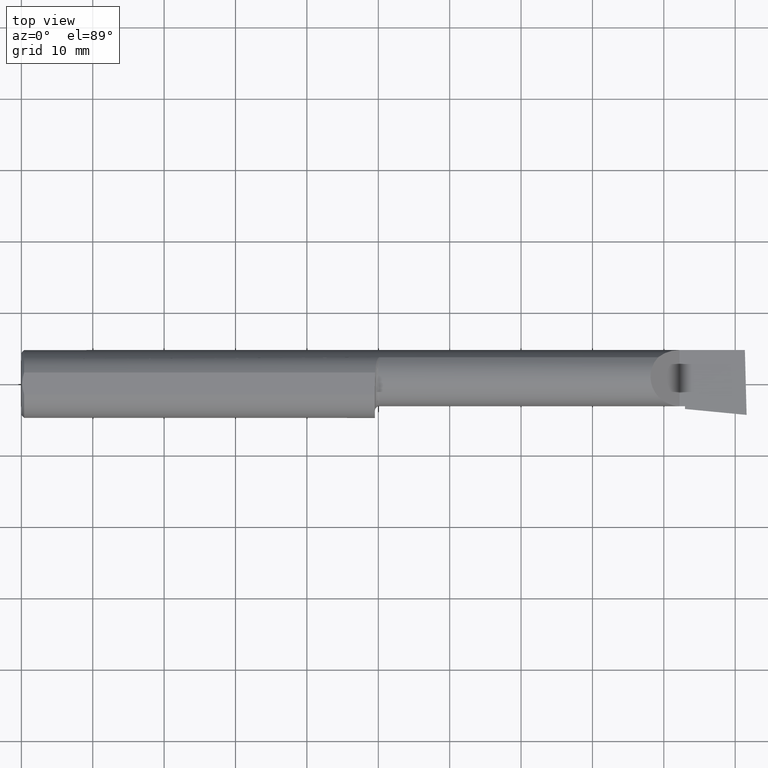
[diagram: clean part render]
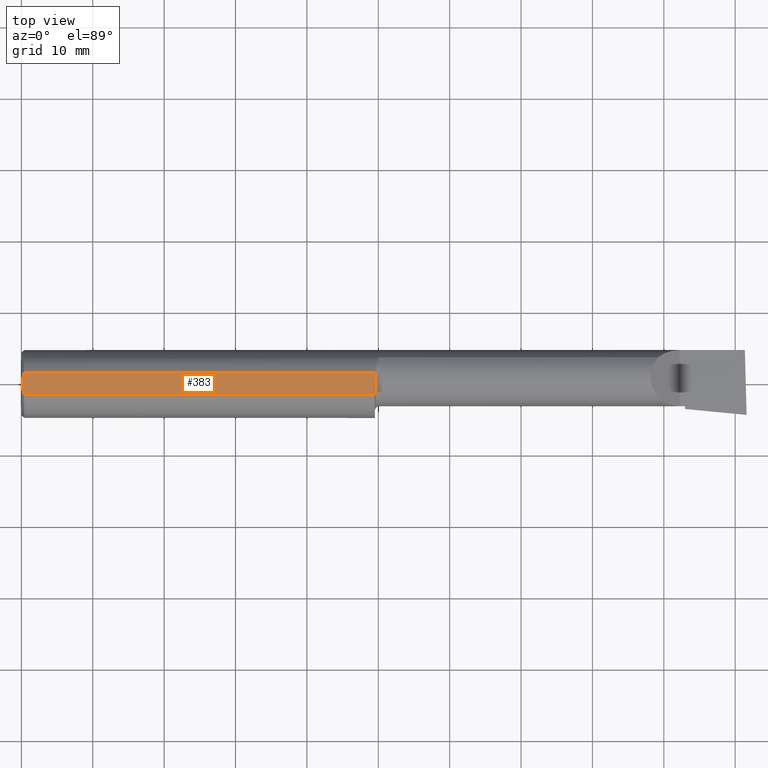
[diagram: same view with one face highlighted and labeled with its STEP entity id]
A machine part, top view. The second image highlights one B-rep face of the part: STEP entity #383.
In plain terms, the highlighted planar face has unit normal (0, -0, -1).
Its self-contained STEP definition (entity closure, byte-faithful):
#21 = AXIS2_PLACEMENT_3D ( 'NONE', #563, #403, #64 ) ;
#24 = ORIENTED_EDGE ( 'NONE', *, *, #596, .T. ) ;
#31 = CARTESIAN_POINT ( 'NONE',  ( 0.005000000000000064289, 2.941982644279459108E-17, 0.1773499999999999799 ) ) ;
#42 = CARTESIAN_POINT ( 'NONE',  ( 0.005000000000000064289, 2.941982644279459108E-17, 0.1773499999999999799 ) ) ;
#56 = CARTESIAN_POINT ( 'NONE',  ( 1.950785114220952909, 0.06039039658755706447, 0.1773499999999999799 ) ) ;
#60 = EDGE_CURVE ( 'NONE', #361, #523, #266, .T. ) ;
#64 = DIRECTION ( 'NONE',  ( 0.000000000000000000, 1.000000000000000000, -1.438723400918613551E-16 ) ) ;
#67 = VECTOR ( 'NONE', #264, 39.37007874015748143 ) ;
#84 = CARTESIAN_POINT ( 'NONE',  ( 0.01499999999999999424, 0.06039039658753699719, 0.1773499999999999799 ) ) ;
#85 = CARTESIAN_POINT ( 'NONE',  ( 0.01499999999999999424, 0.06039039658753699719, 0.1773499999999999799 ) ) ;
#127 = CARTESIAN_POINT ( 'NONE',  ( 1.950000000000000178, -0.01542499408424075763, 0.1773499999999999799 ) ) ;
#131 = CARTESIAN_POINT ( 'NONE',  ( 0.005916828623699200637, 0.02060071390057457985, 0.1773500000000000354 ) ) ;
#136 = DIRECTION ( 'NONE',  ( 4.268512490100411279E-18, 1.000000000000000000, -1.438723400918613551E-16 ) ) ;
#139 = ORIENTED_EDGE ( 'NONE', *, *, #528, .T. ) ;
#140 = LINE ( 'NONE', #689, #693 ) ;
#141 = B_SPLINE_CURVE_WITH_KNOTS ( 'NONE', 3,
 ( #31, #524, #131, #185, #362, #84 ),
 .UNSPECIFIED., .F., .F.,
 ( 4, 2, 4 ),
 ( 0.003471415557842634329, 0.004247578446323233697, 0.005023741334803832198 ),
 .UNSPECIFIED. ) ;
#151 = VECTOR ( 'NONE', #389, 39.37007874015748143 ) ;
#162 = LINE ( 'NONE', #607, #151 ) ;
#185 = CARTESIAN_POINT ( 'NONE',  ( 0.009346310357819969869, 0.04072930668827118295, 0.1773499999999999799 ) ) ;
#202 = CARTESIAN_POINT ( 'NONE',  ( 1.951203659466147933, 0.04770763948016056022, 0.1773499999999999799 ) ) ;
#209 = ORIENTED_EDGE ( 'NONE', *, *, #584, .F. ) ;
#231 = B_SPLINE_CURVE_WITH_KNOTS ( 'NONE', 3,
 ( #485, #585, #697, #481, #536, #573, #202, #430 ),
 .UNSPECIFIED., .F., .F.,
 ( 4, 2, 2, 4 ),
 ( 0.01216978501342508290, 0.01265286668816368275, 0.01313594836290228260, 0.01410211171237948230 ),
 .UNSPECIFIED. ) ;
#233 = VERTEX_POINT ( 'NONE', #674 ) ;
#238 = EDGE_CURVE ( 'NONE', #233, #398, #162, .T. ) ;
#258 = ORIENTED_EDGE ( 'NONE', *, *, #627, .F. ) ;
#264 = DIRECTION ( 'NONE',  ( 1.000000000000000000, 0.000000000000000000, 0.000000000000000000 ) ) ;
#266 = LINE ( 'NONE', #431, #67 ) ;
#328 = CARTESIAN_POINT ( 'NONE',  ( 0.005896899252109526549, -0.02043863390046160924, 0.1773500000000000354 ) ) ;
#360 = PLANE ( 'NONE',  #21 ) ;
#361 = VERTEX_POINT ( 'NONE', #85 ) ;
#362 = CARTESIAN_POINT ( 'NONE',  ( 0.01185291896084126120, 0.05062716160312127206, 0.1773499999999999799 ) ) ;
#374 = CARTESIAN_POINT ( 'NONE',  ( 0.005000000000000064289, 2.941982644279459108E-17, 0.1773499999999999799 ) ) ;
#383 = ADVANCED_FACE ( 'NONE', ( #628 ), #360, .F. ) ;
#389 = DIRECTION ( 'NONE',  ( -1.000000000000000000, -0.000000000000000000, -0.000000000000000000 ) ) ;
#398 = VERTEX_POINT ( 'NONE', #451 ) ;
#403 = DIRECTION ( 'NONE',  ( 0.000000000000000000, -1.438723400918613551E-16, -1.000000000000000000 ) ) ;
#427 = CARTESIAN_POINT ( 'NONE',  ( 0.01499999999999997863, -0.06039039658753695555, 0.1773499999999999799 ) ) ;
#430 = CARTESIAN_POINT ( 'NONE',  ( 1.950785114220952909, 0.06039039658755706447, 0.1773499999999999799 ) ) ;
#431 = CARTESIAN_POINT ( 'NONE',  ( 0.000000000000000000, 0.06039039658753699719, 0.1773499999999999799 ) ) ;
#440 = CARTESIAN_POINT ( 'NONE',  ( 0.009318557230853338064, -0.04061090184993773611, 0.1773500000000000354 ) ) ;
#451 = CARTESIAN_POINT ( 'NONE',  ( 0.01499999999999997863, -0.06039039658753695555, 0.1773499999999999799 ) ) ;
#454 = ORIENTED_EDGE ( 'NONE', *, *, #238, .F. ) ;
#481 = CARTESIAN_POINT ( 'NONE',  ( 1.950617320471541793, 0.009671822434489447951, 0.1773499999999999799 ) ) ;
#485 = CARTESIAN_POINT ( 'NONE',  ( 1.950000000000000178, -0.01542499408424075763, 0.1773499999999999799 ) ) ;
#509 = VERTEX_POINT ( 'NONE', #127 ) ;
#523 = VERTEX_POINT ( 'NONE', #56 ) ;
#524 = CARTESIAN_POINT ( 'NONE',  ( 0.005000000000000065156, 0.01027925662263780987, 0.1773499999999999521 ) ) ;
#527 = VERTEX_POINT ( 'NONE', #42 ) ;
#528 = EDGE_CURVE ( 'NONE', #233, #509, #140, .T. ) ;
#536 = CARTESIAN_POINT ( 'NONE',  ( 1.950860396780995654, 0.01600857064700857840, 0.1773499999999999799 ) ) ;
#563 = CARTESIAN_POINT ( 'NONE',  ( 4.000000000000000000, 0.2373500000000000332, 0.1773499999999999521 ) ) ;
#573 = CARTESIAN_POINT ( 'NONE',  ( 1.951333966108146356, 0.03502260429571603384, 0.1773499999999999799 ) ) ;
#584 = EDGE_CURVE ( 'NONE', #527, #361, #141, .T. ) ;
#585 = CARTESIAN_POINT ( 'NONE',  ( 1.949999999999999734, -0.009183956085900462155, 0.1773499999999999521 ) ) ;
#593 = CARTESIAN_POINT ( 'NONE',  ( 0.005000000000000066891, -0.01026662907944657019, 0.1773499999999999521 ) ) ;
#596 = EDGE_CURVE ( 'NONE', #509, #523, #231, .T. ) ;
#607 = CARTESIAN_POINT ( 'NONE',  ( 0.000000000000000000, -0.06039039658753694861, 0.1773499999999999799 ) ) ;
#627 = EDGE_CURVE ( 'NONE', #398, #527, #651, .T. ) ;
#628 = FACE_OUTER_BOUND ( 'NONE', #692, .T. ) ;
#642 = CARTESIAN_POINT ( 'NONE',  ( 0.01186375298701901684, -0.05066077215909264159, 0.1773500000000000354 ) ) ;
#651 = B_SPLINE_CURVE_WITH_KNOTS ( 'NONE', 3,
 ( #427, #642, #440, #328, #593, #374 ),
 .UNSPECIFIED., .F., .F.,
 ( 4, 2, 4 ),
 ( 0.001920996734031360986, 0.002696206145936997766, 0.003471415557842634329 ),
 .UNSPECIFIED. ) ;
#667 = ORIENTED_EDGE ( 'NONE', *, *, #60, .F. ) ;
#674 = CARTESIAN_POINT ( 'NONE',  ( 1.950000000000000178, -0.06039039658753697637, 0.1773499999999999799 ) ) ;
#689 = CARTESIAN_POINT ( 'NONE',  ( 1.950000000000000178, 0.2373500000000000332, 0.1773499999999999521 ) ) ;
#692 = EDGE_LOOP ( 'NONE', ( #139, #24, #667, #209, #258, #454 ) ) ;
#693 = VECTOR ( 'NONE', #136, 39.37007874015748143 ) ;
#697 = CARTESIAN_POINT ( 'NONE',  ( 1.950184054170650993, -0.003002457793886140463, 0.1773500000000000354 ) ) ;